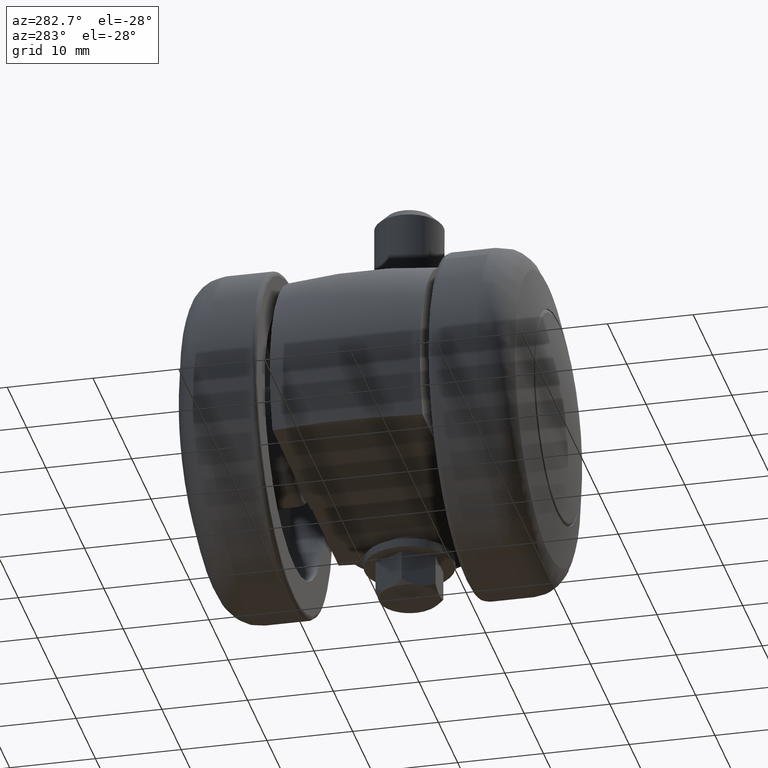
[diagram: clean part render]
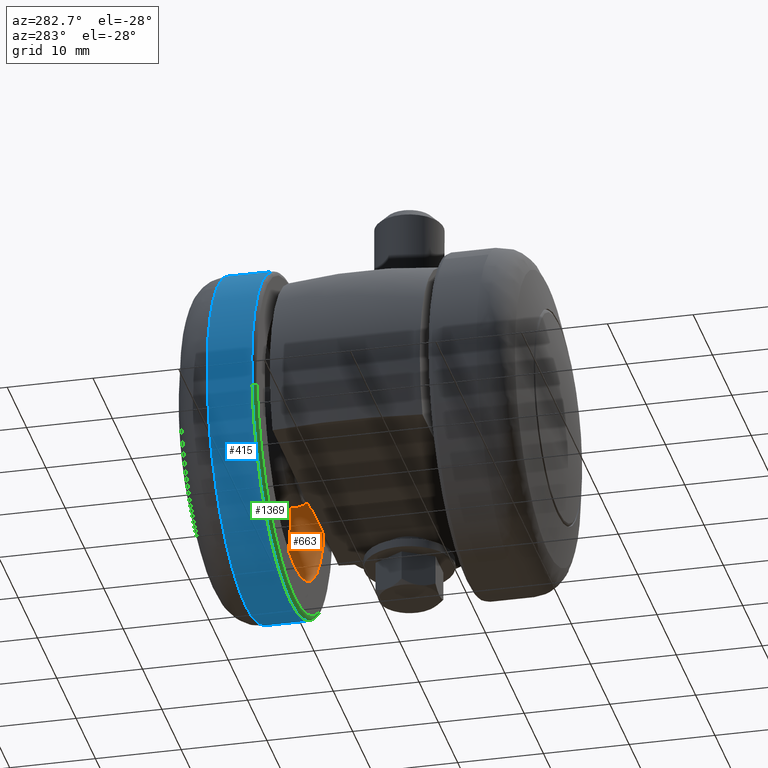
[diagram: same view with three faces highlighted in distinct colors, each labeled with its STEP entity id]
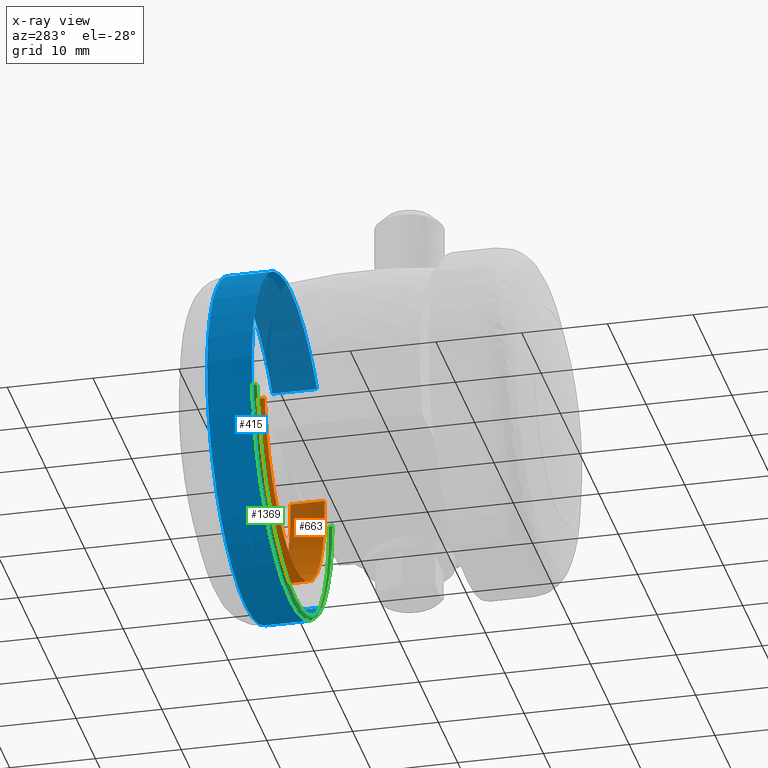
[diagram: x-ray of the same camera — body ghosted, the three highlighted faces saturated]
A machine part, auxiliary view with three faces highlighted in distinct colors.
The next image is the same camera in x-ray (body ghosted, the three faces saturated) — at least one of them is partly hidden behind the body in this view.
Their STEP definitions:

[orange] entity #663 — the highlighted face is a freeform B-spline surface patch.
#500=CARTESIAN_POINT('',(15.468324697602380,-10.000000000000229,-1.838628101079394));
#501=VERTEX_POINT('',#500);
#519=CARTESIAN_POINT('',(15.468324673938630,-14.0,-1.838628300163621));
#520=VERTEX_POINT('',#519);
#521=CARTESIAN_POINT('',(15.468324697602380,-10.000000000000229,-1.838628101079394));
#522=CARTESIAN_POINT('',(15.468324673938630,-14.0,-1.838628300163621));
#523=QUASI_UNIFORM_CURVE('',1,(#521,#522),.UNSPECIFIED.,.F.,.U.);
#524=EDGE_CURVE('',#501,#520,#523,.T.);
#543=CARTESIAN_POINT('',(-15.548161377761341,-14.0,0.950946904683890));
#544=VERTEX_POINT('',#543);
#558=CARTESIAN_POINT('',(-15.548161392165911,-9.999999999999957,0.950946669161521));
#559=VERTEX_POINT('',#558);
#560=CARTESIAN_POINT('',(-15.548161392165911,-9.999999999999957,0.950946669161521));
#561=CARTESIAN_POINT('',(-15.548161377761341,-14.0,0.950946904683890));
#562=QUASI_UNIFORM_CURVE('',1,(#560,#561),.UNSPECIFIED.,.F.,.U.);
#563=EDGE_CURVE('',#559,#544,#562,.T.);
#581=CARTESIAN_POINT('',(-15.548160196645769,-9.899999999999999,0.950966216146328));
#582=CARTESIAN_POINT('',(-16.499126412792101,-9.899999999999999,-14.597193980499444));
#583=CARTESIAN_POINT('',(-0.950966216146327,-9.899999999999999,-15.548160196645769));
#584=CARTESIAN_POINT('',(13.731992349684440,-9.899999999999999,-16.446208414092986));
#585=CARTESIAN_POINT('',(15.468322732669682,-9.899999999999999,-1.838644632000992));
#586=CARTESIAN_POINT('',(-15.548160196645769,-14.102499999999999,0.950966216146328));
#587=CARTESIAN_POINT('',(-16.499126412792101,-14.102500000000003,-14.597193980499444));
#588=CARTESIAN_POINT('',(-0.950966216146327,-14.102499999999999,-15.548160196645769));
#589=CARTESIAN_POINT('',(13.731992349684440,-14.102500000000004,-16.446208414092986));
#590=CARTESIAN_POINT('',(15.468322732669682,-14.102500000000006,-1.838644632000992));
#598=(BOUNDED_SURFACE()B_SPLINE_SURFACE(2,1,((#581,#586),(#582,#587),(#583,#588),(#584,#589),(#585,#590)),.UNSPECIFIED.,.F.,.F.,.U.)B_SPLINE_SURFACE_WITH_KNOTS((3,2,3),(2,2),(0.0,25.809174606807758,50.585982229343202),(0.0,4.202500000000008),.UNSPECIFIED.)GEOMETRIC_REPRESENTATION_ITEM()RATIONAL_B_SPLINE_SURFACE(((1.0,1.0),(0.707106781186548,0.707106781186548),(1.0,1.0),(0.718822509939086,0.718822509939086),(0.977505800795127,0.977505800795127)))REPRESENTATION_ITEM('')SURFACE());
#599=CARTESIAN_POINT('',(0.0,-10.0,-15.577214842352650));
#600=VERTEX_POINT('',#599);
#601=CARTESIAN_POINT('',(0.0,-10.0,-15.577214842352650));
#602=CARTESIAN_POINT('',(13.835300298043540,-10.000000000000002,-15.577214842352655));
#603=CARTESIAN_POINT('',(15.468324697602375,-10.000000000000234,-1.838628101079394));
#611=(BOUNDED_CURVE()B_SPLINE_CURVE(2,(#601,#602,#603),.UNSPECIFIED.,.F.,.U.)B_SPLINE_CURVE_WITH_KNOTS((3,3),(0.0,0.229562654128610),.UNSPECIFIED.)CURVE()GEOMETRIC_REPRESENTATION_ITEM()RATIONAL_B_SPLINE_CURVE((1.0,0.731050621251649,0.956027108196995))REPRESENTATION_ITEM(''));
#612=EDGE_CURVE('',#600,#501,#611,.T.);
#613=ORIENTED_EDGE('',*,*,#612,.F.);
#614=CARTESIAN_POINT('',(-15.548161392165914,-9.999999999999957,0.950946669161521));
#615=CARTESIAN_POINT('',(-15.577214842352650,-10.0,0.475917157034284));
#616=CARTESIAN_POINT('',(-15.577214842352650,-10.0,1.673897E-015));
#617=CARTESIAN_POINT('',(-15.577214842352657,-10.0,-15.577214842352657));
#618=CARTESIAN_POINT('',(0.0,-10.0,-15.577214842352650));
#626=(BOUNDED_CURVE()B_SPLINE_CURVE(2,(#614,#615,#616,#617,#618),.UNSPECIFIED.,.F.,.U.)B_SPLINE_CURVE_WITH_KNOTS((3,2,3),(0.739333179166028,0.750000000000000,1.0),.UNSPECIFIED.)CURVE()GEOMETRIC_REPRESENTATION_ITEM()RATIONAL_B_SPLINE_CURVE((0.976072506583195,0.987503042045726,1.0,0.707106781186547,1.0))REPRESENTATION_ITEM(''));
#627=EDGE_CURVE('',#559,#600,#626,.T.);
#628=ORIENTED_EDGE('',*,*,#627,.F.);
#629=ORIENTED_EDGE('',*,*,#563,.T.);
#630=CARTESIAN_POINT('',(0.0,-14.0,-15.577214842352650));
#631=VERTEX_POINT('',#630);
#632=CARTESIAN_POINT('',(-15.548161377761335,-14.000000000000005,0.950946904683890));
#633=CARTESIAN_POINT('',(-15.577214842352650,-13.999999999999998,0.475917275125635));
#634=CARTESIAN_POINT('',(-15.577214842352650,-14.0,1.673897E-015));
#635=CARTESIAN_POINT('',(-15.577214842352657,-13.999999999999998,-15.577214842352657));
#636=CARTESIAN_POINT('',(0.0,-14.0,-15.577214842352650));
#644=(BOUNDED_CURVE()B_SPLINE_CURVE(2,(#632,#633,#634,#635,#636),.UNSPECIFIED.,.F.,.U.)B_SPLINE_CURVE_WITH_KNOTS((3,2,3),(0.739333176552301,0.750000000000000,1.0),.UNSPECIFIED.)CURVE()GEOMETRIC_REPRESENTATION_ITEM()RATIONAL_B_SPLINE_CURVE((0.976072500981470,0.987503038983554,1.0,0.707106781186547,1.0))REPRESENTATION_ITEM(''));
#645=EDGE_CURVE('',#544,#631,#644,.T.);
#646=ORIENTED_EDGE('',*,*,#645,.T.);
#647=CARTESIAN_POINT('',(0.0,-14.0,-15.577214842352650));
#648=CARTESIAN_POINT('',(13.835300118723586,-14.000000000000005,-15.577214842352651));
#649=CARTESIAN_POINT('',(15.468324673938625,-14.000000000000005,-1.838628300163622));
#657=(BOUNDED_CURVE()B_SPLINE_CURVE(2,(#647,#648,#649),.UNSPECIFIED.,.F.,.U.)B_SPLINE_CURVE_WITH_KNOTS((3,3),(0.0,0.229562651953462),.UNSPECIFIED.)CURVE()GEOMETRIC_REPRESENTATION_ITEM()RATIONAL_B_SPLINE_CURVE((1.0,0.731050623799993,0.956027103933610))REPRESENTATION_ITEM(''));
#658=EDGE_CURVE('',#631,#520,#657,.T.);
#659=ORIENTED_EDGE('',*,*,#658,.T.);
#660=ORIENTED_EDGE('',*,*,#524,.F.);
#661=EDGE_LOOP('',(#613,#628,#629,#646,#659,#660));
#662=FACE_OUTER_BOUND('',#661,.T.);
#663=ADVANCED_FACE('',(#662),#598,.F.);

[blue] entity #415 — the highlighted face is a freeform B-spline surface patch.
#234=CARTESIAN_POINT('',(-15.271112858809298,-10.369729574633656,-12.914840767640504));
#235=CARTESIAN_POINT('',(-14.901495664630293,-10.369729574633650,-13.351893456745792));
#236=CARTESIAN_POINT('',(-14.507487420245750,-10.369729574633650,-13.767091513875069));
#237=CARTESIAN_POINT('',(-0.740395906370672,-10.369729574633649,-28.274578934120825));
#238=CARTESIAN_POINT('',(13.767091513875080,-10.369729574633650,-14.507487420245750));
#239=CARTESIAN_POINT('',(28.274578934120825,-10.369729574633649,-0.740395906370670));
#240=CARTESIAN_POINT('',(14.507487420245750,-10.369729574633650,13.767091513875080));
#241=CARTESIAN_POINT('',(0.740395906370672,-10.369729574633649,28.274578934120825));
#242=CARTESIAN_POINT('',(-13.767091513875080,-10.369729574633650,14.507487420245750));
#243=CARTESIAN_POINT('',(-15.271112858809298,-15.844344185705802,-12.914840767640504));
#244=CARTESIAN_POINT('',(-14.901495664630293,-15.844344185705804,-13.351893456745792));
#245=CARTESIAN_POINT('',(-14.507487420245750,-15.844344185705800,-13.767091513875069));
#246=CARTESIAN_POINT('',(-0.740395906370672,-15.844344185705802,-28.274578934120825));
#247=CARTESIAN_POINT('',(13.767091513875080,-15.844344185705800,-14.507487420245750));
#248=CARTESIAN_POINT('',(28.274578934120825,-15.844344185705802,-0.740395906370670));
#249=CARTESIAN_POINT('',(14.507487420245750,-15.844344185705800,13.767091513875080));
#250=CARTESIAN_POINT('',(0.740395906370672,-15.844344185705802,28.274578934120825));
#251=CARTESIAN_POINT('',(-13.767091513875080,-15.844344185705800,14.507487420245750));
#259=(BOUNDED_SURFACE()B_SPLINE_SURFACE(2,1,((#234,#243),(#235,#244),(#236,#245),(#237,#246),(#238,#247),(#239,#248),(#240,#249),(#241,#250),(#242,#251)),.UNSPECIFIED.,.F.,.F.,.U.)B_SPLINE_SURFACE_WITH_KNOTS((3,2,2,2,3),(2,2),(0.0,1.325483399593905,34.462568389441493,67.599653379289080,100.736738369136700),(0.0,5.474614611072154),.UNSPECIFIED.)GEOMETRIC_REPRESENTATION_ITEM()RATIONAL_B_SPLINE_SURFACE(((0.977505800795127,0.977505800795127),(0.988284271247462,0.988284271247462),(1.0,1.0),(0.707106781186548,0.707106781186548),(1.0,1.0),(0.707106781186548,0.707106781186548),(1.0,1.0),(0.707106781186548,0.707106781186548),(1.0,1.0)))REPRESENTATION_ITEM('')SURFACE());
#260=CARTESIAN_POINT('',(-15.271114650524670,-15.710816999999979,-12.914838649031701));
#261=VERTEX_POINT('',#260);
#262=CARTESIAN_POINT('',(0.0,-15.710817000000000,-20.0));
#263=VERTEX_POINT('',#262);
#264=CARTESIAN_POINT('',(-15.271114650524668,-15.710816999999979,-12.914838649031706));
#265=CARTESIAN_POINT('',(-9.279167255449400,-15.710816999999995,-20.0));
#266=CARTESIAN_POINT('',(0.0,-15.710817000000000,-20.0));
#274=(BOUNDED_CURVE()B_SPLINE_CURVE(2,(#264,#265,#266),.UNSPECIFIED.,.F.,.U.)B_SPLINE_CURVE_WITH_KNOTS((3,3),(0.862408068754087,1.0),.UNSPECIFIED.)CURVE()GEOMETRIC_REPRESENTATION_ITEM()RATIONAL_B_SPLINE_CURVE((0.855039476729178,0.838801025498501,1.0))REPRESENTATION_ITEM(''));
#275=EDGE_CURVE('',#261,#263,#274,.T.);
#276=ORIENTED_EDGE('',*,*,#275,.F.);
#277=CARTESIAN_POINT('',(-15.271114628418390,-10.499999999878741,-12.914838675171209));
#278=VERTEX_POINT('',#277);
#279=CARTESIAN_POINT('',(-15.271114628418390,-10.499999999878741,-12.914838675171209));
#280=CARTESIAN_POINT('',(-15.271114650524670,-15.710816999999979,-12.914838649031701));
#281=QUASI_UNIFORM_CURVE('',1,(#279,#280),.UNSPECIFIED.,.F.,.U.);
#282=EDGE_CURVE('',#278,#261,#281,.T.);
#283=ORIENTED_EDGE('',*,*,#282,.F.);
#284=CARTESIAN_POINT('',(0.0,-10.500000000000000,-20.0));
#285=VERTEX_POINT('',#284);
#286=CARTESIAN_POINT('',(-15.271114628418388,-10.499999999878737,-12.914838675171204));
#287=CARTESIAN_POINT('',(-9.279167234647883,-10.499999999999998,-20.000000000000004));
#288=CARTESIAN_POINT('',(0.0,-10.500000000000000,-20.0));
#296=(BOUNDED_CURVE()B_SPLINE_CURVE(2,(#286,#287,#288),.UNSPECIFIED.,.F.,.U.)B_SPLINE_CURVE_WITH_KNOTS((3,3),(0.862408069012812,1.0),.UNSPECIFIED.)CURVE()GEOMETRIC_REPRESENTATION_ITEM()RATIONAL_B_SPLINE_CURVE((0.855039476668109,0.838801025801616,1.0))REPRESENTATION_ITEM(''));
#297=EDGE_CURVE('',#278,#285,#296,.T.);
#298=ORIENTED_EDGE('',*,*,#297,.T.);
#299=CARTESIAN_POINT('',(19.866232775701381,-10.499999999644290,-2.309284586543626));
#300=VERTEX_POINT('',#299);
#301=CARTESIAN_POINT('',(0.0,-10.500000000000000,-20.0));
#302=CARTESIAN_POINT('',(17.809834016535003,-10.500000000000000,-19.999999999999996));
#303=CARTESIAN_POINT('',(19.866232775701388,-10.499999999644292,-2.309284586543626));
#311=(BOUNDED_CURVE()B_SPLINE_CURVE(2,(#301,#302,#303),.UNSPECIFIED.,.F.,.U.)B_SPLINE_CURVE_WITH_KNOTS((3,3),(0.0,0.229999999999964),.UNSPECIFIED.)CURVE()GEOMETRIC_REPRESENTATION_ITEM()RATIONAL_B_SPLINE_CURVE((1.0,0.730538238691667,0.956886118190588))REPRESENTATION_ITEM(''));
#312=EDGE_CURVE('',#285,#300,#311,.T.);
#313=ORIENTED_EDGE('',*,*,#312,.T.);
#314=CARTESIAN_POINT('',(0.0,-10.500000000000000,20.0));
#315=VERTEX_POINT('',#314);
#316=CARTESIAN_POINT('',(19.866232775701384,-10.499999999644293,-2.309284586543627));
#317=CARTESIAN_POINT('',(20.000000000000004,-10.500000000000002,-1.158516581959710));
#318=CARTESIAN_POINT('',(20.0,-10.500000000000000,1.673897E-015));
#319=CARTESIAN_POINT('',(19.999999999999996,-10.500000000000002,19.999999999999996));
#320=CARTESIAN_POINT('',(0.0,-10.500000000000000,20.0));
#328=(BOUNDED_CURVE()B_SPLINE_CURVE(2,(#316,#317,#318,#319,#320),.UNSPECIFIED.,.F.,.U.)B_SPLINE_CURVE_WITH_KNOTS((3,2,3),(0.229999999999963,0.250000000000000,0.500000000000000),.UNSPECIFIED.)CURVE()GEOMETRIC_REPRESENTATION_ITEM()RATIONAL_B_SPLINE_CURVE((0.956886118190588,0.976568542494881,1.0,0.707106781186548,1.0))REPRESENTATION_ITEM(''));
#329=EDGE_CURVE('',#300,#315,#328,.T.);
#330=ORIENTED_EDGE('',*,*,#329,.T.);
#331=CARTESIAN_POINT('',(-13.767091019001249,-10.499999999906009,14.507487889863439));
#332=VERTEX_POINT('',#331);
#333=CARTESIAN_POINT('',(0.0,-10.500000000000000,20.0));
#334=CARTESIAN_POINT('',(-7.979190128652065,-10.500000000000000,19.999999999999996));
#335=CARTESIAN_POINT('',(-13.767091019001247,-10.499999999906006,14.507487889863441));
#343=(BOUNDED_CURVE()B_SPLINE_CURVE(2,(#333,#334,#335),.UNSPECIFIED.,.F.,.U.)B_SPLINE_CURVE_WITH_KNOTS((3,3),(0.500000000000000,0.621049516363221),.UNSPECIFIED.)CURVE()GEOMETRIC_REPRESENTATION_ITEM()RATIONAL_B_SPLINE_CURVE((1.0,0.858181670066258,0.853699662131870))REPRESENTATION_ITEM(''));
#344=EDGE_CURVE('',#315,#332,#343,.T.);
#345=ORIENTED_EDGE('',*,*,#344,.T.);
#346=CARTESIAN_POINT('',(-13.767091024963470,-15.710817000000000,14.507487884205510));
#347=VERTEX_POINT('',#346);
#348=CARTESIAN_POINT('',(-13.767091019001249,-10.499999999906009,14.507487889863439));
#349=CARTESIAN_POINT('',(-13.767091024963470,-15.710817000000000,14.507487884205510));
#350=QUASI_UNIFORM_CURVE('',1,(#348,#349),.UNSPECIFIED.,.F.,.U.);
#351=EDGE_CURVE('',#332,#347,#350,.T.);
#352=ORIENTED_EDGE('',*,*,#351,.T.);
#353=CARTESIAN_POINT('',(0.0,-15.710817000000000,20.0));
#354=VERTEX_POINT('',#353);
#355=CARTESIAN_POINT('',(0.0,-15.710817000000000,20.0));
#356=CARTESIAN_POINT('',(-7.979190138179949,-15.710816999999999,19.999999999999993));
#357=CARTESIAN_POINT('',(-13.767091024963474,-15.710817000000004,14.507487884205506));
#365=(BOUNDED_CURVE()B_SPLINE_CURVE(2,(#355,#356,#357),.UNSPECIFIED.,.F.,.U.)B_SPLINE_CURVE_WITH_KNOTS((3,3),(0.500000000000000,0.621049516487266),.UNSPECIFIED.)CURVE()GEOMETRIC_REPRESENTATION_ITEM()RATIONAL_B_SPLINE_CURVE((1.0,0.858181669920930,0.853699662122684))REPRESENTATION_ITEM(''));
#366=EDGE_CURVE('',#354,#347,#365,.T.);
#367=ORIENTED_EDGE('',*,*,#366,.F.);
#368=CARTESIAN_POINT('',(8.106151179093516,-15.710817000069889,18.283607769302009));
#369=VERTEX_POINT('',#368);
#370=CARTESIAN_POINT('',(8.106151179093518,-15.710817000069888,18.283607769302005));
#371=CARTESIAN_POINT('',(4.234789588246176,-15.710816999999997,20.0));
#372=CARTESIAN_POINT('',(0.0,-15.710817000000000,20.0));
#380=(BOUNDED_CURVE()B_SPLINE_CURVE(2,(#370,#371,#372),.UNSPECIFIED.,.F.,.U.)B_SPLINE_CURVE_WITH_KNOTS((3,3),(0.431175101877697,0.500000000000000),.UNSPECIFIED.)CURVE()GEOMETRIC_REPRESENTATION_ITEM()RATIONAL_B_SPLINE_CURVE((0.883129907828137,0.919366616217803,1.0))REPRESENTATION_ITEM(''));
#381=EDGE_CURVE('',#369,#354,#380,.T.);
#382=ORIENTED_EDGE('',*,*,#381,.F.);
#383=CARTESIAN_POINT('',(19.097290894931451,-15.710817000069440,-5.940831631545199));
#384=VERTEX_POINT('',#383);
#385=CARTESIAN_POINT('',(19.097290894931447,-15.710817000069433,-5.940831631545199));
#386=CARTESIAN_POINT('',(19.999999999999996,-15.710817000000000,-3.038999120176934));
#387=CARTESIAN_POINT('',(20.0,-15.710817000000000,1.673897E-015));
#388=CARTESIAN_POINT('',(19.999999999999996,-15.710816999999997,13.010395946990158));
#389=CARTESIAN_POINT('',(8.106151179093516,-15.710817000069893,18.283607769302005));
#397=(BOUNDED_CURVE()B_SPLINE_CURVE(2,(#385,#386,#387,#388,#389),.UNSPECIFIED.,.F.,.U.)B_SPLINE_CURVE_WITH_KNOTS((3,2,3),(0.199458637681192,0.250000000000000,0.431175101877698),.UNSPECIFIED.)CURVE()GEOMETRIC_REPRESENTATION_ITEM()RATIONAL_B_SPLINE_CURVE((0.905515822342135,0.940787110828909,1.0,0.787740164968744,0.883129907828137))REPRESENTATION_ITEM(''));
#398=EDGE_CURVE('',#384,#369,#397,.T.);
#399=ORIENTED_EDGE('',*,*,#398,.F.);
#400=CARTESIAN_POINT('',(0.0,-15.710817000000000,-20.0));
#401=CARTESIAN_POINT('',(14.723730654574370,-15.710816999999993,-19.999999999999996));
#402=CARTESIAN_POINT('',(19.097290894931451,-15.710817000069435,-5.940831631545199));
#410=(BOUNDED_CURVE()B_SPLINE_CURVE(2,(#400,#401,#402),.UNSPECIFIED.,.F.,.U.)B_SPLINE_CURVE_WITH_KNOTS((3,3),(0.0,0.199458637681191),.UNSPECIFIED.)CURVE()GEOMETRIC_REPRESENTATION_ITEM()RATIONAL_B_SPLINE_CURVE((1.0,0.766319670357639,0.905515822342134))REPRESENTATION_ITEM(''));
#411=EDGE_CURVE('',#263,#384,#410,.T.);
#412=ORIENTED_EDGE('',*,*,#411,.F.);
#413=EDGE_LOOP('',(#276,#283,#298,#313,#330,#345,#352,#367,#382,#399,#412));
#414=FACE_OUTER_BOUND('',#413,.T.);
#415=ADVANCED_FACE('',(#414),#259,.T.);

[green] entity #1369 — the highlighted face is a freeform B-spline surface patch.
#277=CARTESIAN_POINT('',(-15.271114628418390,-10.499999999878741,-12.914838675171209));
#278=VERTEX_POINT('',#277);
#284=CARTESIAN_POINT('',(0.0,-10.500000000000000,-20.0));
#285=VERTEX_POINT('',#284);
#286=CARTESIAN_POINT('',(-15.271114628418388,-10.499999999878737,-12.914838675171204));
#287=CARTESIAN_POINT('',(-9.279167234647883,-10.499999999999998,-20.000000000000004));
#288=CARTESIAN_POINT('',(0.0,-10.500000000000000,-20.0));
#296=(BOUNDED_CURVE()B_SPLINE_CURVE(2,(#286,#287,#288),.UNSPECIFIED.,.F.,.U.)B_SPLINE_CURVE_WITH_KNOTS((3,3),(0.862408069012812,1.0),.UNSPECIFIED.)CURVE()GEOMETRIC_REPRESENTATION_ITEM()RATIONAL_B_SPLINE_CURVE((0.855039476668109,0.838801025801616,1.0))REPRESENTATION_ITEM(''));
#297=EDGE_CURVE('',#278,#285,#296,.T.);
#299=CARTESIAN_POINT('',(19.866232775701381,-10.499999999644290,-2.309284586543626));
#300=VERTEX_POINT('',#299);
#301=CARTESIAN_POINT('',(0.0,-10.500000000000000,-20.0));
#302=CARTESIAN_POINT('',(17.809834016535003,-10.500000000000000,-19.999999999999996));
#303=CARTESIAN_POINT('',(19.866232775701388,-10.499999999644292,-2.309284586543626));
#311=(BOUNDED_CURVE()B_SPLINE_CURVE(2,(#301,#302,#303),.UNSPECIFIED.,.F.,.U.)B_SPLINE_CURVE_WITH_KNOTS((3,3),(0.0,0.229999999999964),.UNSPECIFIED.)CURVE()GEOMETRIC_REPRESENTATION_ITEM()RATIONAL_B_SPLINE_CURVE((1.0,0.730538238691667,0.956886118190588))REPRESENTATION_ITEM(''));
#312=EDGE_CURVE('',#285,#300,#311,.T.);
#446=CARTESIAN_POINT('',(-20.0,-10.499999999657700,1.773286E-015));
#447=VERTEX_POINT('',#446);
#461=CARTESIAN_POINT('',(-20.0,-10.499999999657700,1.773286E-015));
#462=CARTESIAN_POINT('',(-19.999999999999996,-10.499999999783036,-7.323181482201092));
#463=CARTESIAN_POINT('',(-15.271114628418388,-10.499999999878737,-12.914838675171204));
#471=(BOUNDED_CURVE()B_SPLINE_CURVE(2,(#461,#462,#463),.UNSPECIFIED.,.F.,.U.)B_SPLINE_CURVE_WITH_KNOTS((3,3),(0.750000000000000,0.862408069012812),.UNSPECIFIED.)CURVE()GEOMETRIC_REPRESENTATION_ITEM()RATIONAL_B_SPLINE_CURVE((1.0,0.868305755384932,0.855039476668109))REPRESENTATION_ITEM(''));
#472=EDGE_CURVE('',#447,#278,#471,.T.);
#1246=CARTESIAN_POINT('',(19.369576970773579,-10.0,-2.251552473714209));
#1247=VERTEX_POINT('',#1246);
#1248=CARTESIAN_POINT('',(19.369576970773579,-10.000000000000002,-2.251552473714209));
#1249=CARTESIAN_POINT('',(19.866232774994959,-10.000000029159544,-2.309284586459335));
#1250=CARTESIAN_POINT('',(19.866232775701384,-10.499999999644288,-2.309284586543626));
#1258=(BOUNDED_CURVE()B_SPLINE_CURVE(2,(#1248,#1249,#1250),.UNSPECIFIED.,.F.,.U.)B_SPLINE_CURVE_WITH_KNOTS((3,3),(-1.736413060714072,-0.276558719480179),.UNSPECIFIED.)CURVE()GEOMETRIC_REPRESENTATION_ITEM()RATIONAL_B_SPLINE_CURVE((0.850203255579142,0.599621909643583,0.845789311403432))REPRESENTATION_ITEM(''));
#1259=EDGE_CURVE('',#1247,#300,#1258,.T.);
#1278=CARTESIAN_POINT('',(-19.500000001679300,-10.0,1.773424E-015));
#1279=VERTEX_POINT('',#1278);
#1293=CARTESIAN_POINT('',(-19.500000001679300,-10.0,1.773424E-015));
#1294=CARTESIAN_POINT('',(-19.999999999315399,-10.000000003358622,1.748501E-015));
#1295=CARTESIAN_POINT('',(-19.999999999999996,-10.499999999657700,1.773286E-015));
#1303=(BOUNDED_CURVE()B_SPLINE_CURVE(2,(#1293,#1294,#1295),.UNSPECIFIED.,.F.,.U.)B_SPLINE_CURVE_WITH_KNOTS((3,3),(-1.736413114120075,-0.276558719424948),.UNSPECIFIED.)CURVE()GEOMETRIC_REPRESENTATION_ITEM()RATIONAL_B_SPLINE_CURVE((0.888510406568388,0.626638728715531,0.883897566641818))REPRESENTATION_ITEM(''));
#1304=EDGE_CURVE('',#1279,#447,#1303,.T.);
#1311=CARTESIAN_POINT('',(-19.465323834557914,-10.001203885790765,1.191868E-015));
#1312=CARTESIAN_POINT('',(-19.465323834557907,-10.001203885790765,-19.465323834557907));
#1313=CARTESIAN_POINT('',(-2.383736E-015,-10.001203885790765,-19.465323834557914));
#1314=CARTESIAN_POINT('',(17.333709328582714,-10.001203885790760,-19.465323834557918));
#1315=CARTESIAN_POINT('',(19.335132717587037,-10.001203885790767,-2.247548615159156));
#1316=CARTESIAN_POINT('',(-20.038869755939707,-9.961331134797110,1.226986E-015));
#1317=CARTESIAN_POINT('',(-20.038869755939704,-9.961331134797112,-20.038869755939700));
#1318=CARTESIAN_POINT('',(-2.453973E-015,-9.961331134797110,-20.038869755939707));
#1319=CARTESIAN_POINT('',(17.844447211616345,-9.961331134797110,-20.038869755939704));
#1320=CARTESIAN_POINT('',(19.904842556673291,-9.961331134797115,-2.313772652955191));
#1321=CARTESIAN_POINT('',(-19.998783149844947,-10.534862148969227,1.224532E-015));
#1322=CARTESIAN_POINT('',(-19.998783149844943,-10.534862148969230,-19.998783149844943));
#1323=CARTESIAN_POINT('',(-2.449064E-015,-10.534862148969227,-19.998783149844947));
#1324=CARTESIAN_POINT('',(17.808750421574633,-10.534862148969227,-19.998783149844943));
#1325=CARTESIAN_POINT('',(19.865024064279964,-10.534862148969230,-2.309144083876122));
#1333=(BOUNDED_SURFACE()B_SPLINE_SURFACE(2,2,((#1311,#1316,#1321),(#1312,#1317,#1322),(#1313,#1318,#1323),(#1314,#1319,#1324),(#1315,#1320,#1325)),.UNSPECIFIED.,.F.,.F.,.U.)B_SPLINE_SURFACE_WITH_KNOTS((3,2,3),(3,3),(0.0,33.135068846497198,63.619332185274622),(0.0,0.911186293939372),.UNSPECIFIED.)GEOMETRIC_REPRESENTATION_ITEM()RATIONAL_B_SPLINE_SURFACE(((0.915967362172989,0.599412545841544,0.910892988179215),(0.647686733138075,0.423848675892848,0.644098608876801),(0.915967362172989,0.599412545841544,0.910892988179215),(0.669149183460868,0.437893785488743,0.665442159220994),(0.876476453579050,0.573569544185095,0.871620855545900)))REPRESENTATION_ITEM('')SURFACE());
#1334=ORIENTED_EDGE('',*,*,#312,.F.);
#1335=ORIENTED_EDGE('',*,*,#297,.F.);
#1336=ORIENTED_EDGE('',*,*,#472,.F.);
#1337=ORIENTED_EDGE('',*,*,#1304,.F.);
#1338=CARTESIAN_POINT('',(0.0,-10.0,-19.500000000000000));
#1339=VERTEX_POINT('',#1338);
#1340=CARTESIAN_POINT('',(-19.500000001679304,-10.0,1.773424E-015));
#1341=CARTESIAN_POINT('',(-19.499999999999986,-10.0,-19.500000000000000));
#1342=CARTESIAN_POINT('',(0.0,-10.0,-19.500000000000000));
#1350=(BOUNDED_CURVE()B_SPLINE_CURVE(2,(#1340,#1341,#1342),.UNSPECIFIED.,.F.,.U.)B_SPLINE_CURVE_WITH_KNOTS((3,3),(0.750000000000000,1.0),.UNSPECIFIED.)CURVE()GEOMETRIC_REPRESENTATION_ITEM()RATIONAL_B_SPLINE_CURVE((1.000000000000000,0.707106781186548,1.0))REPRESENTATION_ITEM(''));
#1351=EDGE_CURVE('',#1279,#1339,#1350,.T.);
#1352=ORIENTED_EDGE('',*,*,#1351,.T.);
#1353=CARTESIAN_POINT('',(0.0,-10.0,-19.500000000000000));
#1354=CARTESIAN_POINT('',(17.364588165849540,-9.999999999999998,-19.500000000000004));
#1355=CARTESIAN_POINT('',(19.369576970773586,-10.0,-2.251552473714209));
#1363=(BOUNDED_CURVE()B_SPLINE_CURVE(2,(#1353,#1354,#1355),.UNSPECIFIED.,.F.,.U.)B_SPLINE_CURVE_WITH_KNOTS((3,3),(0.0,0.229999999997331),.UNSPECIFIED.)CURVE()GEOMETRIC_REPRESENTATION_ITEM()RATIONAL_B_SPLINE_CURVE((1.0,0.730538238694751,0.956886118185406))REPRESENTATION_ITEM(''));
#1364=EDGE_CURVE('',#1339,#1247,#1363,.T.);
#1365=ORIENTED_EDGE('',*,*,#1364,.T.);
#1366=ORIENTED_EDGE('',*,*,#1259,.T.);
#1367=EDGE_LOOP('',(#1334,#1335,#1336,#1337,#1352,#1365,#1366));
#1368=FACE_OUTER_BOUND('',#1367,.T.);
#1369=ADVANCED_FACE('',(#1368),#1333,.T.);